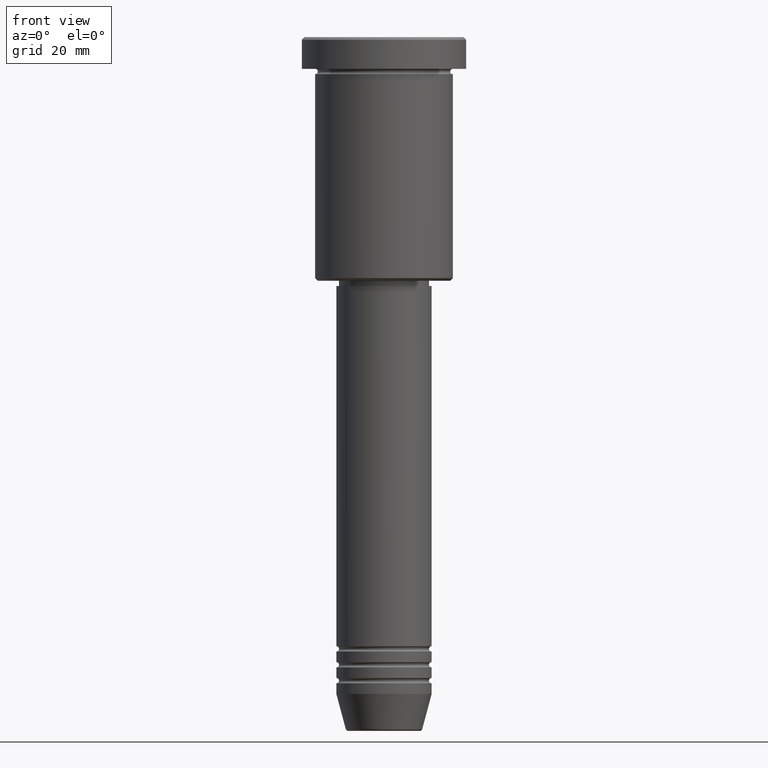
[diagram: clean part render]
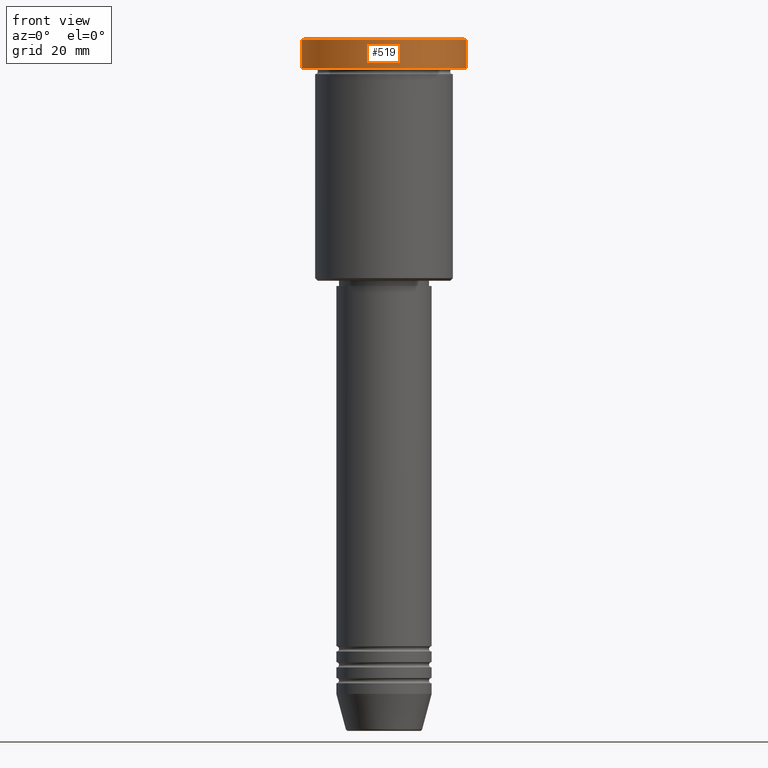
[diagram: same view with one face highlighted and labeled with its STEP entity id]
A machine part, front view. The second image highlights one B-rep face of the part: STEP entity #519.
In plain terms, the highlighted cylindrical surface (partial cylindrical patch) has radius 15.5 mm, axis along (-0, -0, 1).
Its self-contained STEP definition (entity closure, byte-faithful):
#50 = VECTOR ( 'NONE', #987, 1000.000000000000000 ) ;
#86 = LINE ( 'NONE', #800, #50 ) ;
#128 = CIRCLE ( 'NONE', #568, 15.50000000000000000 ) ;
#135 = DIRECTION ( 'NONE',  ( -0.000000000000000000, -0.000000000000000000, 1.000000000000000000 ) ) ;
#147 = CARTESIAN_POINT ( 'NONE',  ( 15.50000000000000000, 0.000000000000000000, 0.000000000000000000 ) ) ;
#156 = VERTEX_POINT ( 'NONE', #306 ) ;
#170 = VERTEX_POINT ( 'NONE', #397 ) ;
#217 = CARTESIAN_POINT ( 'NONE',  ( 0.000000000000000000, 0.000000000000000000, -5.999999999999995559 ) ) ;
#222 = DIRECTION ( 'NONE',  ( 1.000000000000000000, 0.000000000000000000, 0.000000000000000000 ) ) ;
#239 = CARTESIAN_POINT ( 'NONE',  ( 15.50000000000000000, 0.000000000000000000, -5.999999999999995559 ) ) ;
#306 = CARTESIAN_POINT ( 'NONE',  ( -15.50000000000000000, 1.898202538678397557E-15, -5.999999999999995559 ) ) ;
#320 = VECTOR ( 'NONE', #135, 1000.000000000000000 ) ;
#395 = EDGE_CURVE ( 'NONE', #156, #602, #1073, .T. ) ;
#397 = CARTESIAN_POINT ( 'NONE',  ( -15.50000000000000000, 1.898202538678397557E-15, -0.4999999999999709677 ) ) ;
#477 = EDGE_CURVE ( 'NONE', #597, #170, #128, .T. ) ;
#513 = ORIENTED_EDGE ( 'NONE', *, *, #477, .T. ) ;
#519 = ADVANCED_FACE ( 'NONE', ( #970 ), #782, .T. ) ;
#562 = EDGE_CURVE ( 'NONE', #602, #597, #864, .T. ) ;
#568 = AXIS2_PLACEMENT_3D ( 'NONE', #655, #1011, #1118 ) ;
#597 = VERTEX_POINT ( 'NONE', #1049 ) ;
#602 = VERTEX_POINT ( 'NONE', #239 ) ;
#611 = CARTESIAN_POINT ( 'NONE',  ( 0.000000000000000000, 0.000000000000000000, 0.000000000000000000 ) ) ;
#621 = AXIS2_PLACEMENT_3D ( 'NONE', #217, #845, #854 ) ;
#630 = ORIENTED_EDGE ( 'NONE', *, *, #1132, .F. ) ;
#655 = CARTESIAN_POINT ( 'NONE',  ( 0.000000000000000000, 0.000000000000000000, -0.4999999999999709677 ) ) ;
#657 = ORIENTED_EDGE ( 'NONE', *, *, #395, .T. ) ;
#782 = CYLINDRICAL_SURFACE ( 'NONE', #1037, 15.50000000000000000 ) ;
#791 = EDGE_LOOP ( 'NONE', ( #630, #657, #1115, #513 ) ) ;
#800 = CARTESIAN_POINT ( 'NONE',  ( -15.50000000000000000, 1.898202538678397557E-15, 0.000000000000000000 ) ) ;
#845 = DIRECTION ( 'NONE',  ( -0.000000000000000000, -0.000000000000000000, 1.000000000000000000 ) ) ;
#854 = DIRECTION ( 'NONE',  ( 1.000000000000000000, 0.000000000000000000, 0.000000000000000000 ) ) ;
#864 = LINE ( 'NONE', #147, #320 ) ;
#867 = DIRECTION ( 'NONE',  ( -0.000000000000000000, -0.000000000000000000, 1.000000000000000000 ) ) ;
#970 = FACE_OUTER_BOUND ( 'NONE', #791, .T. ) ;
#987 = DIRECTION ( 'NONE',  ( -0.000000000000000000, -0.000000000000000000, 1.000000000000000000 ) ) ;
#1011 = DIRECTION ( 'NONE',  ( 0.000000000000000000, 0.000000000000000000, -1.000000000000000000 ) ) ;
#1037 = AXIS2_PLACEMENT_3D ( 'NONE', #611, #867, #222 ) ;
#1049 = CARTESIAN_POINT ( 'NONE',  ( 15.50000000000000000, 0.000000000000000000, -0.4999999999999709677 ) ) ;
#1073 = CIRCLE ( 'NONE', #621, 15.50000000000000000 ) ;
#1115 = ORIENTED_EDGE ( 'NONE', *, *, #562, .T. ) ;
#1118 = DIRECTION ( 'NONE',  ( 1.000000000000000000, 0.000000000000000000, 0.000000000000000000 ) ) ;
#1132 = EDGE_CURVE ( 'NONE', #156, #170, #86, .T. ) ;